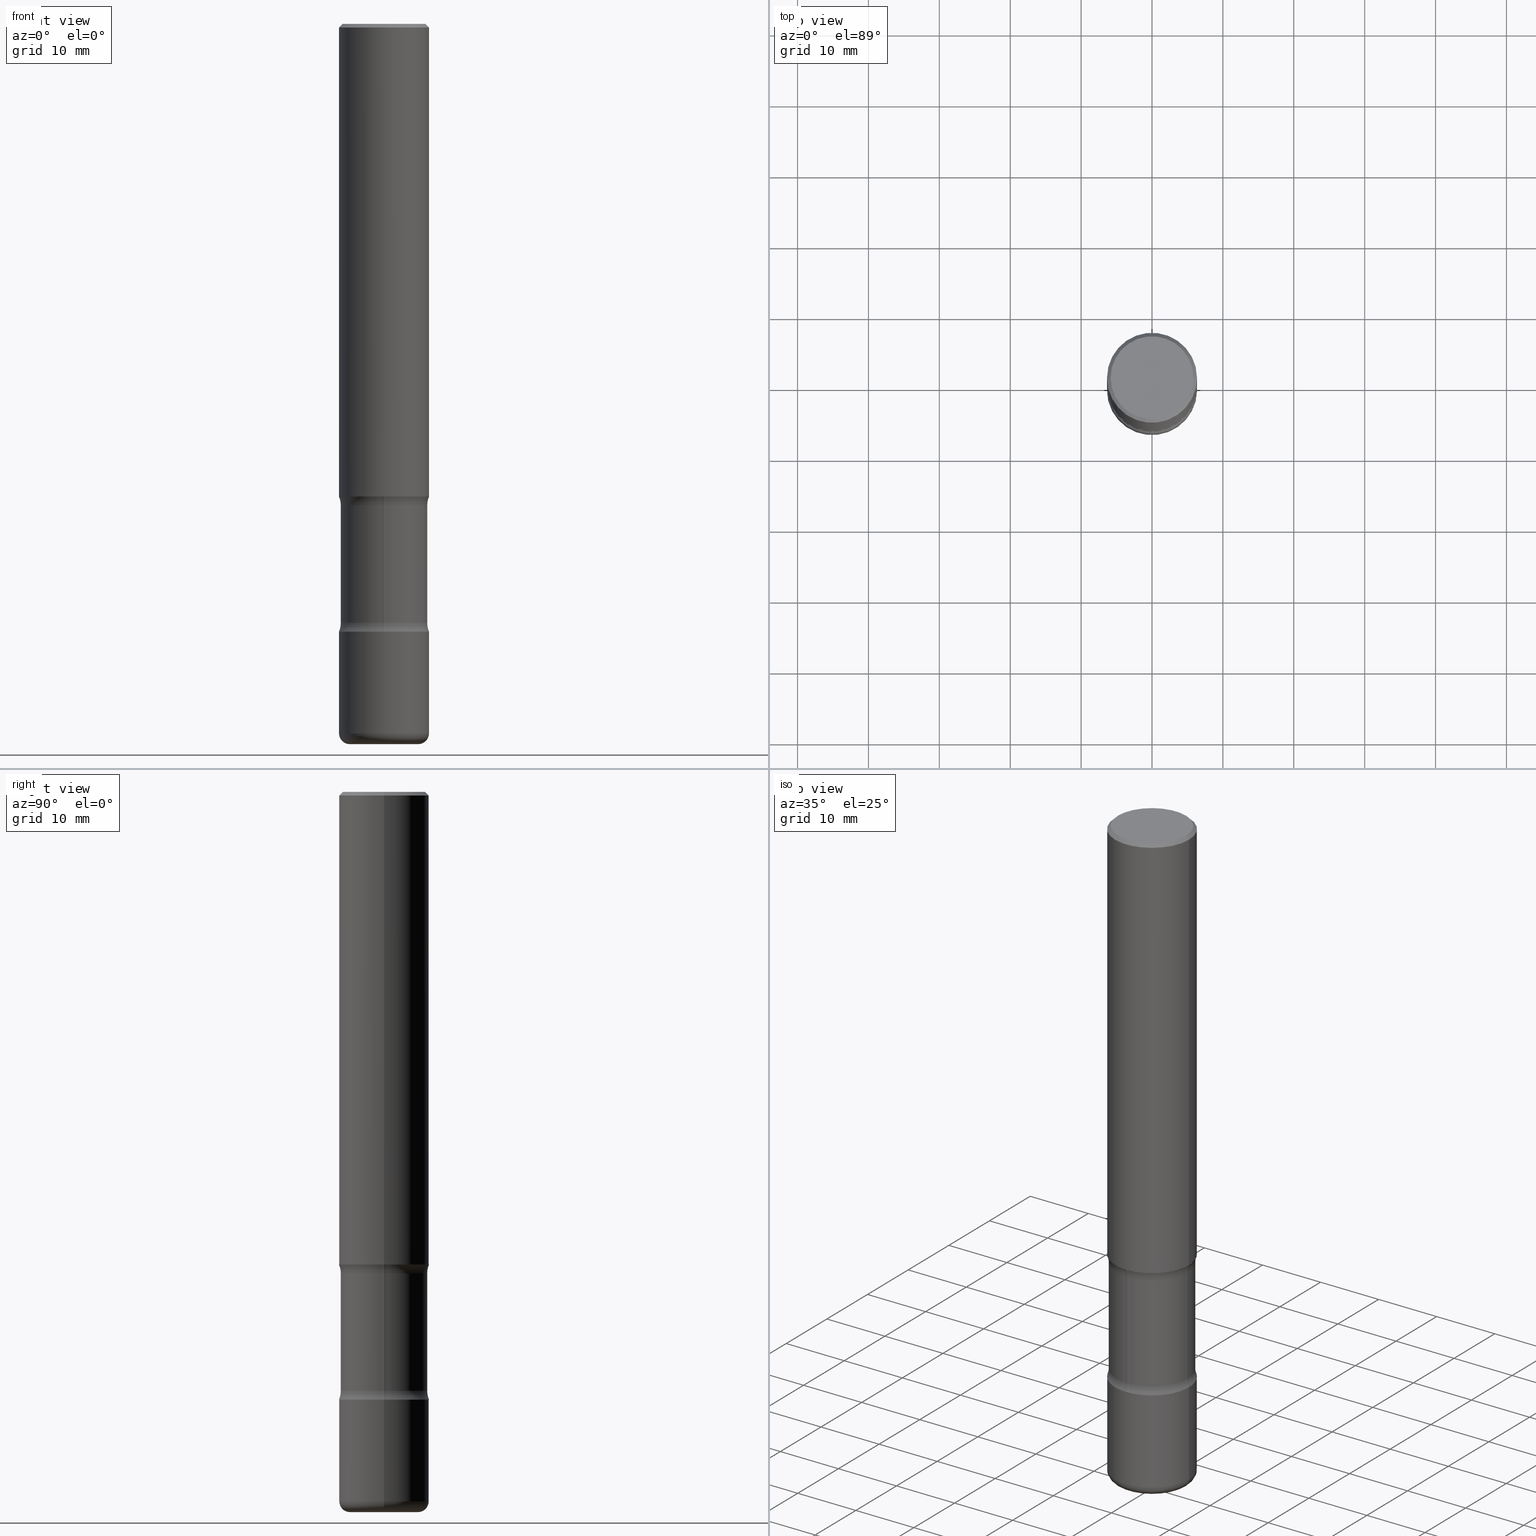
[diagram: canonical four-view strip — front | top / right | iso, engineering-drawing reading convention]
A machine part, canonical four-view strip (front | top / right | iso — engineering-drawing reading convention). The complete STEP part file that produces these views, byte-faithful:
ISO-10303-21;
HEADER;
FILE_DESCRIPTION (( 'STEP AP203' ),
    '1' );
FILE_NAME ('32832.STEP',
    '2023-03-11T07:05:04',
    ( '' ),
    ( '' ),
    'SwSTEP 2.0',
    'SolidWorks 2022',
    '' );
FILE_SCHEMA (( 'CONFIG_CONTROL_DESIGN' ));
ENDSEC;

DATA;
#1 = DIRECTION ( 'NONE',  ( 7.105427357601001859E-15, 1.000000000000000000, -3.491481338843145583E-15 ) ) ;
#2 = CARTESIAN_POINT ( 'NONE',  ( 9.781875224740545266E-29, -1.396592535537258075E-14, -3.999999999999999556 ) ) ;
#3 = ADVANCED_FACE ( 'NONE', ( #791 ), #230, .T. ) ;
#4 = EDGE_CURVE ( 'NONE', #780, #776, #705, .T. ) ;
#5 = VECTOR ( 'NONE', #343, 39.37007874015748143 ) ;
#6 = DIRECTION ( 'NONE',  ( 1.000000000000000000, -6.860497997771530774E-15, 4.840828329721222774E-29 ) ) ;
#7 = AXIS2_PLACEMENT_3D ( 'NONE', #625, #319, #640 ) ;
#8 = DIRECTION ( 'NONE',  ( 2.447148057124329649E-29, -3.489076555921193226E-15, -1.000000000000000000 ) ) ;
#9 = CARTESIAN_POINT ( 'NONE',  ( 0.2399999999999999079, -1.084104955710795999E-14, -2.625000000000000000 ) ) ;
#10 = CARTESIAN_POINT ( 'NONE',  ( 0.000000000000000000, 0.000000000000000000, 0.000000000000000000 ) ) ;
#11 = ORIENTED_EDGE ( 'NONE', *, *, #44, .F. ) ;
#12 = CARTESIAN_POINT ( 'NONE',  ( -1.646519519465068952E-15, -0.2400000000000138412, -3.994238073033860914 ) ) ;
#13 = LINE ( 'NONE', #635, #300 ) ;
#14 = ORIENTED_EDGE ( 'NONE', *, *, #455, .F. ) ;
#15 = CARTESIAN_POINT ( 'NONE',  ( 9.774491940116842475E-29, -1.393620241939029166E-14, -3.994238073033861802 ) ) ;
#16 = VECTOR ( 'NONE', #52, 39.37007874015748143 ) ;
#17 = VECTOR ( 'NONE', #495, 39.37007874015748143 ) ;
#18 = CARTESIAN_POINT ( 'NONE',  ( 1.675911042644767869E-15, 0.2399999999999904987, -2.673989794855665014 ) ) ;
#19 = VERTEX_POINT ( 'NONE', #356 ) ;
#20 = ORIENTED_EDGE ( 'NONE', *, *, #762, .T. ) ;
#21 = PRODUCT_RELATED_PRODUCT_CATEGORY ( 'detail', '', ( #481 ) ) ;
#22 = DIRECTION ( 'NONE',  ( 1.000000000000000000, -6.982962677686270655E-15, 0.000000000000000000 ) ) ;
#23 = ORIENTED_EDGE ( 'NONE', *, *, #429, .F. ) ;
#24 = ORIENTED_EDGE ( 'NONE', *, *, #65, .F. ) ;
#25 = ORIENTED_EDGE ( 'NONE', *, *, #120, .T. ) ;
#26 = ADVANCED_FACE ( 'NONE', ( #411 ), #312, .F. ) ;
#27 = DIRECTION ( 'NONE',  ( -2.445468806185136597E-29, 3.491481338843145583E-15, 1.000000000000000000 ) ) ;
#28 = AXIS2_PLACEMENT_3D ( 'NONE', #740, #426, #63 ) ;
#29 = AXIS2_PLACEMENT_3D ( 'NONE', #477, #722, #353 ) ;
#30 = ORIENTED_EDGE ( 'NONE', *, *, #366, .T. ) ;
#31 = LOCAL_TIME ( 2, 5, 4.000000000000000000, #176 ) ;
#32 = PLANE ( 'NONE',  #211 ) ;
#33 = DIRECTION ( 'NONE',  ( -2.445468806185136597E-29, 3.491481338843145583E-15, 1.000000000000000000 ) ) ;
#34 = CARTESIAN_POINT ( 'NONE',  ( 8.253457220874836014E-29, -1.178374951859561452E-14, -3.375000000000000000 ) ) ;
#35 = DIRECTION ( 'NONE',  ( 2.447148057124329649E-29, -3.489076555921193226E-15, -1.000000000000000000 ) ) ;
#36 = VERTEX_POINT ( 'NONE', #49 ) ;
#37 = EDGE_LOOP ( 'NONE', ( #717, #688 ) ) ;
#38 = EDGE_CURVE ( 'NONE', #106, #158, #494, .T. ) ;
#39 = APPROVAL_ROLE ( '' ) ;
#40 = DIRECTION ( 'NONE',  ( 1.000000000000000000, -6.982962677686262766E-15, 0.000000000000000000 ) ) ;
#41 = AXIS2_PLACEMENT_3D ( 'NONE', #647, #700, #22 ) ;
#42 = ORIENTED_EDGE ( 'NONE', *, *, #482, .T. ) ;
#43 = AXIS2_PLACEMENT_3D ( 'NONE', #709, #27, #468 ) ;
#44 = EDGE_CURVE ( 'NONE', #332, #95, #604, .T. ) ;
#45 = ADVANCED_FACE ( 'NONE', ( #241 ), #155, .F. ) ;
#46 = PERSON_AND_ORGANIZATION ( #207, #275 ) ;
#47 = AXIS2_PLACEMENT_3D ( 'NONE', #503, #389, #753 ) ;
#48 = CARTESIAN_POINT ( 'NONE',  ( 9.781875224740545266E-29, -1.396592535537258075E-14, -3.999999999999999556 ) ) ;
#49 = CARTESIAN_POINT ( 'NONE',  ( -0.2500000000000000000, -1.000739267919536563E-14, -3.375000000000000000 ) ) ;
#50 = PERSON_AND_ORGANIZATION ( #207, #275 ) ;
#51 = FACE_OUTER_BOUND ( 'NONE', #103, .T. ) ;
#52 = DIRECTION ( 'NONE',  ( -2.445468806185136877E-29, 3.491481338843145188E-15, 1.000000000000000000 ) ) ;
#53 = DATE_TIME_ROLE ( 'classification_date' ) ;
#54 = DIRECTION ( 'NONE',  ( 6.860497997771532351E-15, 1.000000000000000000, 0.000000000000000000 ) ) ;
#55 = EDGE_CURVE ( 'NONE', #19, #785, #286, .T. ) ;
#56 = DIRECTION ( 'NONE',  ( 1.000000000000000000, -6.982962677686269077E-15, 0.000000000000000000 ) ) ;
#57 = AXIS2_PLACEMENT_3D ( 'NONE', #507, #386, #320 ) ;
#58 = AXIS2_PLACEMENT_3D ( 'NONE', #276, #528, #464 ) ;
#59 = VECTOR ( 'NONE', #763, 39.37007874015748143 ) ;
#60 = CYLINDRICAL_SURFACE ( 'NONE', #301, 0.2399999999999999079 ) ;
#61 = CARTESIAN_POINT ( 'NONE',  ( 1.060460840681890784E-27, -1.514057029249396506E-13, -43.36431681319133702 ) ) ;
#62 = DIRECTION ( 'NONE',  ( 2.447148057124329649E-29, -3.489076555921193226E-15, -1.000000000000000000 ) ) ;
#63 = DIRECTION ( 'NONE',  ( 6.982962677686265922E-15, 1.000000000000000000, -4.370956789862821150E-15 ) ) ;
#64 = SHAPE_DEFINITION_REPRESENTATION ( #664, #543 ) ;
#65 = EDGE_CURVE ( 'NONE', #93, #412, #487, .T. ) ;
#66 = DIRECTION ( 'NONE',  ( -1.000000000000000000, 6.982962677686265922E-15, -4.876176775795935793E-29 ) ) ;
#67 = DIRECTION ( 'NONE',  ( -2.445468806185136597E-29, 3.491481338843145583E-15, 1.000000000000000000 ) ) ;
#68 = CC_DESIGN_PERSON_AND_ORGANIZATION_ASSIGNMENT ( #787, #792, ( #159 ) ) ;
#69 = CLOSED_SHELL ( 'NONE', ( #400, #233, #619, #474, #741, #179, #280, #102 ) ) ;
#70 = CIRCLE ( 'NONE', #526, 0.2399999999999998246 ) ;
#71 = PLANE ( 'NONE',  #425 ) ;
#72 = CIRCLE ( 'NONE', #302, 0.2500000000000000000 ) ;
#73 = DIRECTION ( 'NONE',  ( 1.000000000000000000, -6.982962677686262766E-15, 0.000000000000000000 ) ) ;
#74 = ORIENTED_EDGE ( 'NONE', *, *, #762, .F. ) ;
#75 = LINE ( 'NONE', #254, #760 ) ;
#76 = CARTESIAN_POINT ( 'NONE',  ( 8.133654205733900913E-29, -1.161270256406331354E-14, -3.326010205144336318 ) ) ;
#77 = ORIENTED_EDGE ( 'NONE', *, *, #557, .T. ) ;
#78 = LINE ( 'NONE', #200, #59 ) ;
#79 = MANIFOLD_SOLID_BREP ( 'Body-Move/Copy2[2]', #563 ) ;
#80 = EDGE_CURVE ( 'NONE', #225, #106, #616, .T. ) ;
#81 = CARTESIAN_POINT ( 'NONE',  ( 8.253457220874836014E-29, -1.178374951859561452E-14, -3.375000000000000000 ) ) ;
#82 = VERTEX_POINT ( 'NONE', #806 ) ;
#83 = FACE_OUTER_BOUND ( 'NONE', #728, .T. ) ;
#84 = CIRCLE ( 'NONE', #434, 0.2399999999999999634 ) ;
#85 = CARTESIAN_POINT ( 'NONE',  ( 6.419355616235983567E-29, -9.165138514463256612E-15, -2.625000000000000000 ) ) ;
#86 = ORIENTED_EDGE ( 'NONE', *, *, #482, .F. ) ;
#87 = MANIFOLD_SOLID_BREP ( 'Body-Move/Copy2[3]', #433 ) ;
#88 = FACE_OUTER_BOUND ( 'NONE', #686, .T. ) ;
#89 = ORIENTED_EDGE ( 'NONE', *, *, #305, .T. ) ;
#90 = ORIENTED_EDGE ( 'NONE', *, *, #98, .F. ) ;
#91 = ADVANCED_FACE ( 'NONE', ( #178 ), #111, .T. ) ;
#92 = CARTESIAN_POINT ( 'NONE',  ( 8.253457220874836014E-29, -1.178374951859561452E-14, -3.375000000000000000 ) ) ;
#93 = VERTEX_POINT ( 'NONE', #175 ) ;
#94 = LINE ( 'NONE', #282, #5 ) ;
#95 = VERTEX_POINT ( 'NONE', #560 ) ;
#96 = SECURITY_CLASSIFICATION ( '', '', #484 ) ;
#97 = DIRECTION ( 'NONE',  ( 1.000000000000000000, -6.982962677686266711E-15, 4.876176775795935793E-29 ) ) ;
#98 = EDGE_CURVE ( 'NONE', #718, #216, #576, .T. ) ;
#99 = DIRECTION ( 'NONE',  ( -1.000000000000000000, 6.982962677686266711E-15, 0.000000000000000000 ) ) ;
#100 = DIRECTION ( 'NONE',  ( -2.445468806185136877E-29, 3.491481338843145188E-15, 1.000000000000000000 ) ) ;
#101 = UNCERTAINTY_MEASURE_WITH_UNIT (LENGTH_MEASURE( 1.000000000000000082E-05 ), #663, 'distance_accuracy_value', 'NONE');
#102 = ADVANCED_FACE ( 'NONE', ( #545 ), #549, .T. ) ;
#103 = EDGE_LOOP ( 'NONE', ( #697, #397, #140, #145 ) ) ;
#104 = APPROVAL_DATE_TIME ( #480, #124 ) ;
#105 = AXIS2_PLACEMENT_3D ( 'NONE', #360, #622, #491 ) ;
#106 = VERTEX_POINT ( 'NONE', #554 ) ;
#107 = TOROIDAL_SURFACE ( 'NONE', #183, 0.1899999999999999745, 0.05999999999999994227 ) ;
#108 = DATE_AND_TIME ( #421, #463 ) ;
#109 = APPROVAL_PERSON_ORGANIZATION ( #295, #160, #364 ) ;
#110 = CARTESIAN_POINT ( 'NONE',  ( 0.000000000000000000, 0.000000000000000000, 0.000000000000000000 ) ) ;
#111 = PLANE ( 'NONE',  #105 ) ;
#112 = EDGE_CURVE ( 'NONE', #82, #216, #422, .T. ) ;
#113 = CARTESIAN_POINT ( 'NONE',  ( -0.3649999999999999356, -9.019221578538946345E-15, -3.326010205144336318 ) ) ;
#114 = DIRECTION ( 'NONE',  ( 7.105427357601001859E-15, 1.000000000000000000, -3.491481338843145583E-15 ) ) ;
#115 = DIRECTION ( 'NONE',  ( -2.445468806185136597E-29, 3.491481338843145583E-15, 1.000000000000000000 ) ) ;
#116 = CARTESIAN_POINT ( 'NONE',  ( -0.2499999999999997224, 1.675911042644701605E-15, -0.02000000000000005593 ) ) ;
#117 = AXIS2_PLACEMENT_3D ( 'NONE', #61, #234, #304 ) ;
#118 = VECTOR ( 'NONE', #236, 39.37007874015748143 ) ;
#119 = DIRECTION ( 'NONE',  ( -2.445468806185136597E-29, 3.491481338843145583E-15, 1.000000000000000000 ) ) ;
#120 = EDGE_CURVE ( 'NONE', #771, #412, #682, .T. ) ;
#121 = FACE_OUTER_BOUND ( 'NONE', #656, .T. ) ;
#122 = CARTESIAN_POINT ( 'NONE',  ( 6.419355616235983567E-29, -9.165138514463256612E-15, -2.625000000000000000 ) ) ;
#123 = DIRECTION ( 'NONE',  ( -2.445468806185136597E-29, 3.491481338843145583E-15, 1.000000000000000000 ) ) ;
#124 = APPROVAL ( #418, 'UNSPECIFIED' ) ;
#125 = DIRECTION ( 'NONE',  ( 1.000000000000000000, -6.982962677686262766E-15, 0.000000000000000000 ) ) ;
#126 = CARTESIAN_POINT ( 'NONE',  ( 8.253457220874836014E-29, -1.178374951859561452E-14, -3.375000000000000000 ) ) ;
#127 = VERTEX_POINT ( 'NONE', #626 ) ;
#128 = AXIS2_PLACEMENT_3D ( 'NONE', #81, #630, #752 ) ;
#129 = AXIS2_PLACEMENT_3D ( 'NONE', #48, #430, #167 ) ;
#130 = DIRECTION ( 'NONE',  ( 6.982962677686265922E-15, 1.000000000000000000, -3.489076555921192832E-15 ) ) ;
#131 = CIRCLE ( 'NONE', #527, 0.2500000000000000000 ) ;
#132 = CARTESIAN_POINT ( 'NONE',  ( 6.537981459331545506E-29, -9.337871246365005652E-15, -2.673989794855663682 ) ) ;
#133 = ORIENTED_EDGE ( 'NONE', *, *, #623, .F. ) ;
#134 = EDGE_CURVE ( 'NONE', #457, #593, #182, .T. ) ;
#135 = CARTESIAN_POINT ( 'NONE',  ( 9.781875224740546387E-29, -1.396592535537258233E-14, -4.000000000000000000 ) ) ;
#136 = CARTESIAN_POINT ( 'NONE',  ( 0.000000000000000000, 0.000000000000000000, 0.000000000000000000 ) ) ;
#137 = ORIENTED_EDGE ( 'NONE', *, *, #714, .F. ) ;
#138 = FACE_OUTER_BOUND ( 'NONE', #146, .T. ) ;
#139 = CARTESIAN_POINT ( 'NONE',  ( 0.2500000000000000000, -1.091087918388482487E-14, -2.625000000000000000 ) ) ;
#140 = ORIENTED_EDGE ( 'NONE', *, *, #340, .T. ) ;
#141 = AXIS2_PLACEMENT_3D ( 'NONE', #770, #414, #97 ) ;
#142 = CC_DESIGN_APPROVAL ( #504, ( #159 ) ) ;
#143 = FACE_OUTER_BOUND ( 'NONE', #272, .T. ) ;
#144 = EDGE_CURVE ( 'NONE', #512, #95, #575, .T. ) ;
#145 = ORIENTED_EDGE ( 'NONE', *, *, #703, .F. ) ;
#146 = EDGE_LOOP ( 'NONE', ( #602, #148, #151, #269 ) ) ;
#147 = DIRECTION ( 'NONE',  ( -2.445468806185136597E-29, 3.491481338843145583E-15, 1.000000000000000000 ) ) ;
#148 = ORIENTED_EDGE ( 'NONE', *, *, #134, .T. ) ;
#149 = EDGE_LOOP ( 'NONE', ( #265, #568, #470, #655 ) ) ;
#150 = DIRECTION ( 'NONE',  ( -2.445468806185136597E-29, 3.491481338843145583E-15, 1.000000000000000000 ) ) ;
#151 = ORIENTED_EDGE ( 'NONE', *, *, #714, .T. ) ;
#152 = ORIENTED_EDGE ( 'NONE', *, *, #513, .T. ) ;
#153 = CALENDAR_DATE ( 2023, 11, 3 ) ;
#154 = DIRECTION ( 'NONE',  ( 2.447148057124329649E-29, -3.489076555921193226E-15, -1.000000000000000000 ) ) ;
#155 = TOROIDAL_SURFACE ( 'NONE', #224, 0.3649999999999999356, 0.1249999999999999584 ) ;
#156 = CIRCLE ( 'NONE', #369, 0.2500000000000000000 ) ;
#157 = ORIENTED_EDGE ( 'NONE', *, *, #727, .T. ) ;
#158 = VERTEX_POINT ( 'NONE', #116 ) ;
#159 = PRODUCT_DEFINITION_FORMATION_WITH_SPECIFIED_SOURCE ( 'ANY', '', #481, .NOT_KNOWN. ) ;
#160 = APPROVAL ( #672, 'UNSPECIFIED' ) ;
#161 = CARTESIAN_POINT ( 'NONE',  ( -0.2500000000000000000, 1.776356839400250465E-15, -1.229733772563726445E-29 ) ) ;
#162 = ORIENTED_EDGE ( 'NONE', *, *, #632, .F. ) ;
#163 = VERTEX_POINT ( 'NONE', #620 ) ;
#164 = DIRECTION ( 'NONE',  ( 0.000000000000000000, 0.000000000000000000, 1.000000000000000000 ) ) ;
#165 = DIRECTION ( 'NONE',  ( 2.447148057124329649E-29, -3.489076555921193226E-15, -1.000000000000000000 ) ) ;
#166 = PERSON_AND_ORGANIZATION_ROLE ( 'classification_officer' ) ;
#167 = DIRECTION ( 'NONE',  ( 1.000000000000000000, -6.982962677686267499E-15, 0.000000000000000000 ) ) ;
#168 = AXIS2_PLACEMENT_3D ( 'NONE', #428, #674, #374 ) ;
#169 = DIRECTION ( 'NONE',  ( 1.000000000000000000, -6.982962677686270655E-15, 0.000000000000000000 ) ) ;
#170 = ADVANCED_FACE ( 'NONE', ( #121 ), #719, .F. ) ;
#171 = AXIS2_PLACEMENT_3D ( 'NONE', #85, #459, #311 ) ;
#172 = COORDINATED_UNIVERSAL_TIME_OFFSET ( 5, 0, .BEHIND. ) ;
#173 = VECTOR ( 'NONE', #372, 39.37007874015748143 ) ;
#174 = FACE_OUTER_BOUND ( 'NONE', #536, .T. ) ;
#175 = CARTESIAN_POINT ( 'NONE',  ( -0.1649999999999997025, -1.281373651355435053E-14, -3.999999999999999556 ) ) ;
#176 = COORDINATED_UNIVERSAL_TIME_OFFSET ( 5, 0, .BEHIND. ) ;
#177 = CARTESIAN_POINT ( 'NONE',  ( 8.253457220874836014E-29, -1.178374951859561452E-14, -3.375000000000000000 ) ) ;
#178 = FACE_OUTER_BOUND ( 'NONE', #583, .T. ) ;
#179 = ADVANCED_FACE ( 'NONE', ( #486 ), #371, .F. ) ;
#180 = LINE ( 'NONE', #611, #118 ) ;
#181 = CARTESIAN_POINT ( 'NONE',  ( -0.2499999999999998612, 1.776356839400249479E-15, -1.229733772563725745E-29 ) ) ;
#182 = CIRCLE ( 'NONE', #745, 0.2399999999999999634 ) ;
#183 = AXIS2_PLACEMENT_3D ( 'NONE', #522, #147, #349 ) ;
#184 = DIRECTION ( 'NONE',  ( -1.000000000000000000, 6.982962677686266711E-15, 0.000000000000000000 ) ) ;
#185 = EDGE_CURVE ( 'NONE', #163, #332, #538, .T. ) ;
#186 = CARTESIAN_POINT ( 'NONE',  ( 9.781875224740546387E-29, -1.396592535537258233E-14, -4.000000000000000000 ) ) ;
#187 = CYLINDRICAL_SURFACE ( 'NONE', #788, 0.2399999999999999079 ) ;
#188 = FACE_OUTER_BOUND ( 'NONE', #534, .T. ) ;
#189 = ORIENTED_EDGE ( 'NONE', *, *, #270, .F. ) ;
#190 = LINE ( 'NONE', #9, #646 ) ;
#191 = DIRECTION ( 'NONE',  ( 1.000000000000000000, -6.982962677686263555E-15, 0.000000000000000000 ) ) ;
#192 = ORIENTED_EDGE ( 'NONE', *, *, #789, .T. ) ;
#193 = EDGE_CURVE ( 'NONE', #106, #225, #406, .T. ) ;
#194 = AXIS2_PLACEMENT_3D ( 'NONE', #76, #8, #201 ) ;
#195 = AXIS2_PLACEMENT_3D ( 'NONE', #427, #607, #555 ) ;
#196 = CARTESIAN_POINT ( 'NONE',  ( 1.606081415867839095E-15, 0.2299999999999997047, -8.009064516888722925E-16 ) ) ;
#197 = CIRCLE ( 'NONE', #355, 0.1250000000000000000 ) ;
#198 = DIRECTION ( 'NONE',  ( 1.000000000000000000, -6.982962677686269077E-15, 0.000000000000000000 ) ) ;
#199 = VERTEX_POINT ( 'NONE', #317 ) ;
#200 = CARTESIAN_POINT ( 'NONE',  ( -0.2499999999999997224, 1.675911042644701605E-15, -0.02000000000000005593 ) ) ;
#201 = DIRECTION ( 'NONE',  ( 6.982962677686265922E-15, 1.000000000000000000, -3.489076555921193226E-15 ) ) ;
#202 = ORIENTED_EDGE ( 'NONE', *, *, #419, .T. ) ;
#203 = EDGE_CURVE ( 'NONE', #593, #127, #248, .T. ) ;
#204 = CYLINDRICAL_SURFACE ( 'NONE', #476, 0.2499999999999998612 ) ;
#205 = VERTEX_POINT ( 'NONE', #447 ) ;
#206 = ORIENTED_EDGE ( 'NONE', *, *, #596, .T. ) ;
#207 = PERSON ( 'UNSPECIFIED', 'UNSPECIFIED', 'UNSPECIFIED', ('UNSPECIFIED'), ('UNSPECIFIED'), ('UNSPECIFIED') ) ;
#208 = AXIS2_PLACEMENT_3D ( 'NONE', #743, #114, #749 ) ;
#209 = CIRCLE ( 'NONE', #680, 0.2399999999999998246 ) ;
#210 = CC_DESIGN_PERSON_AND_ORGANIZATION_ASSIGNMENT ( #781, #285, ( #159 ) ) ;
#211 = AXIS2_PLACEMENT_3D ( 'NONE', #135, #438, #330 ) ;
#212 = CARTESIAN_POINT ( 'NONE',  ( 9.635147096369438236E-29, -1.375643647504199401E-14, -3.939999999999999947 ) ) ;
#213 = EDGE_LOOP ( 'NONE', ( #416, #666 ) ) ;
#214 = ORIENTED_EDGE ( 'NONE', *, *, #144, .T. ) ;
#215 = CARTESIAN_POINT ( 'NONE',  ( 0.1649999999999997025, -1.509790752500488195E-14, -3.999999999999999556 ) ) ;
#216 = VERTEX_POINT ( 'NONE', #505 ) ;
#217 = ORIENTED_EDGE ( 'NONE', *, *, #624, .T. ) ;
#218 = DATE_AND_TIME ( #603, #451 ) ;
#219 = CARTESIAN_POINT ( 'NONE',  ( 2.548781377355568365E-15, 0.3649999999999883338, -3.326010205144337206 ) ) ;
#220 = ORIENTED_EDGE ( 'NONE', *, *, #270, .T. ) ;
#221 = EDGE_CURVE ( 'NONE', #127, #36, #628, .T. ) ;
#222 = CLOSED_SHELL ( 'NONE', ( #26, #255, #375, #804, #439, #351, #242, #170 ) ) ;
#223 = FACE_OUTER_BOUND ( 'NONE', #598, .T. ) ;
#224 = AXIS2_PLACEMENT_3D ( 'NONE', #676, #123, #671 ) ;
#225 = VERTEX_POINT ( 'NONE', #139 ) ;
#226 = ORIENTED_EDGE ( 'NONE', *, *, #444, .T. ) ;
#227 = AXIS2_PLACEMENT_3D ( 'NONE', #251, #384, #452 ) ;
#228 =( LENGTH_UNIT ( ) NAMED_UNIT ( * ) SI_UNIT ( $, .METRE. ) );
#229 = DIRECTION ( 'NONE',  ( 6.982962677686265922E-15, 1.000000000000000000, -4.553079989440442247E-15 ) ) ;
#230 = PLANE ( 'NONE',  #525 ) ;
#231 = CALENDAR_DATE ( 2023, 11, 3 ) ;
#232 = FACE_OUTER_BOUND ( 'NONE', #577, .T. ) ;
#233 = ADVANCED_FACE ( 'NONE', ( #571 ), #273, .F. ) ;
#234 = DIRECTION ( 'NONE',  ( 2.445468806185136597E-29, -3.491481338843145583E-15, -1.000000000000000000 ) ) ;
#235 = PERSON_AND_ORGANIZATION ( #207, #275 ) ;
#236 = DIRECTION ( 'NONE',  ( -2.445468806185136877E-29, 3.491481338843145188E-15, 1.000000000000000000 ) ) ;
#237 = AXIS2_PLACEMENT_3D ( 'NONE', #501, #803, #431 ) ;
#238 = DIRECTION ( 'NONE',  ( 6.982962677686265922E-15, 1.000000000000000000, -4.553079989440440670E-15 ) ) ;
#239 = CIRCLE ( 'NONE', #736, 0.1249999999999999584 ) ;
#240 = DIRECTION ( 'NONE',  ( -6.982962677686266711E-15, -1.000000000000000000, 3.491481338843145583E-15 ) ) ;
#241 = FACE_OUTER_BOUND ( 'NONE', #694, .T. ) ;
#242 = ADVANCED_FACE ( 'NONE', ( #188 ), #252, .F. ) ;
#243 = CARTESIAN_POINT ( 'NONE',  ( 8.253457220874836014E-29, -1.178374951859561452E-14, -3.375000000000000000 ) ) ;
#244 = DIRECTION ( 'NONE',  ( -2.447148057124329649E-29, 3.489076555921192832E-15, 1.000000000000000000 ) ) ;
#245 = PRODUCT_DEFINITION ( 'UNKNOWN', '', #159, #387 ) ;
#246 = DIRECTION ( 'NONE',  ( -2.445468806185136597E-29, 3.491481338843145583E-15, 1.000000000000000000 ) ) ;
#247 = DIRECTION ( 'NONE',  ( -2.445468806185136597E-29, 3.491481338843145583E-15, 1.000000000000000000 ) ) ;
#248 = CIRCLE ( 'NONE', #367, 0.1249999999999999584 ) ;
#249 = CIRCLE ( 'NONE', #500, 0.2499999999999997224 ) ;
#250 = CIRCLE ( 'NONE', #227, 0.1250000000000000000 ) ;
#251 = CARTESIAN_POINT ( 'NONE',  ( 2.548781377355551799E-15, 0.3649999999999904987, -2.673989794855665014 ) ) ;
#252 = PLANE ( 'NONE',  #128 ) ;
#253 = APPROVAL_DATE_TIME ( #441, #160 ) ;
#254 = CARTESIAN_POINT ( 'NONE',  ( 0.2499999999999997224, -1.784954126219744217E-15, -0.02000000000000005593 ) ) ;
#255 = ADVANCED_FACE ( 'NONE', ( #764 ), #268, .T. ) ;
#256 = DIRECTION ( 'NONE',  ( 2.447148057124329649E-29, -3.489076555921193226E-15, -1.000000000000000000 ) ) ;
#257 = EDGE_LOOP ( 'NONE', ( #321, #74 ) ) ;
#258 = CARTESIAN_POINT ( 'NONE',  ( -1.680822009453943183E-15, -0.2400000000000115652, -3.326010205144334986 ) ) ;
#259 = DIRECTION ( 'NONE',  ( 1.000000000000000000, -6.982962677686265133E-15, 0.000000000000000000 ) ) ;
#260 = ORIENTED_EDGE ( 'NONE', *, *, #775, .T. ) ;
#261 = VECTOR ( 'NONE', #100, 39.37007874015748143 ) ;
#262 = CARTESIAN_POINT ( 'NONE',  ( 1.675911042644784829E-15, 0.2399999999999883615, -3.326010205144337206 ) ) ;
#263 = CIRCLE ( 'NONE', #748, 0.1249999999999999584 ) ;
#264 = CARTESIAN_POINT ( 'NONE',  ( 4.890937612370287172E-31, -6.982962677686310098E-17, -0.02000000000000005593 ) ) ;
#265 = ORIENTED_EDGE ( 'NONE', *, *, #775, .F. ) ;
#266 = ORIENTED_EDGE ( 'NONE', *, *, #465, .T. ) ;
#267 = EDGE_CURVE ( 'NONE', #205, #339, #588, .T. ) ;
#268 = CYLINDRICAL_SURFACE ( 'NONE', #734, 0.2500000000000000000 ) ;
#269 = ORIENTED_EDGE ( 'NONE', *, *, #292, .F. ) ;
#270 = EDGE_CURVE ( 'NONE', #771, #93, #13, .T. ) ;
#271 = FACE_OUTER_BOUND ( 'NONE', #519, .T. ) ;
#272 = EDGE_LOOP ( 'NONE', ( #631, #89, #157, #294 ) ) ;
#273 = TOROIDAL_SURFACE ( 'NONE', #194, 0.3649999999999999356, 0.1249999999999999584 ) ;
#274 = AXIS2_PLACEMENT_3D ( 'NONE', #92, #33, #40 ) ;
#275 = ORGANIZATION ( 'UNSPECIFIED', 'UNSPECIFIED', '' ) ;
#276 = CARTESIAN_POINT ( 'NONE',  ( 6.539158631376917547E-29, -9.336185468995560747E-15, -2.673989794855663682 ) ) ;
#277 = EDGE_LOOP ( 'NONE', ( #290, #648 ) ) ;
#278 = DIRECTION ( 'NONE',  ( -6.982962677686266711E-15, -1.000000000000000000, 3.491481338843145583E-15 ) ) ;
#279 = CYLINDRICAL_SURFACE ( 'NONE', #141, 0.2500000000000000000 ) ;
#280 = ADVANCED_FACE ( 'NONE', ( #768 ), #757, .F. ) ;
#281 = DIRECTION ( 'NONE',  ( 2.438088387897960049E-29, -3.491481338843145188E-15, -1.000000000000000000 ) ) ;
#282 = CARTESIAN_POINT ( 'NONE',  ( 1.675911042644801001E-15, 0.2399999999999859746, -3.994238073033863134 ) ) ;
#283 = ORIENTED_EDGE ( 'NONE', *, *, #465, .F. ) ;
#284 = ORIENTED_EDGE ( 'NONE', *, *, #727, .F. ) ;
#285 = PERSON_AND_ORGANIZATION_ROLE ( 'creator' ) ;
#286 = CIRCLE ( 'NONE', #28, 0.2500000000000000000 ) ;
#287 = FACE_OUTER_BOUND ( 'NONE', #347, .T. ) ;
#288 = CIRCLE ( 'NONE', #43, 0.1899999999999999745 ) ;
#289 = CIRCLE ( 'NONE', #502, 0.1249999999999999584 ) ;
#290 = ORIENTED_EDGE ( 'NONE', *, *, #221, .F. ) ;
#291 = PERSON_AND_ORGANIZATION_ROLE ( 'design_owner' ) ;
#292 = EDGE_CURVE ( 'NONE', #216, #82, #209, .T. ) ;
#293 = DIRECTION ( 'NONE',  ( -2.445468806185136597E-29, 3.491481338843145583E-15, 1.000000000000000000 ) ) ;
#294 = ORIENTED_EDGE ( 'NONE', *, *, #557, .F. ) ;
#295 = PERSON_AND_ORGANIZATION ( #207, #275 ) ;
#296 = CC_DESIGN_DATE_AND_TIME_ASSIGNMENT ( #108, #53, ( #96 ) ) ;
#297 = CARTESIAN_POINT ( 'NONE',  ( -1.043851414335219820E-46, 1.490343170380447200E-32, 4.268512490100411279E-18 ) ) ;
#298 = CARTESIAN_POINT ( 'NONE',  ( 6.419355616235983567E-29, -9.165138514463256612E-15, -2.625000000000000000 ) ) ;
#299 = DIRECTION ( 'NONE',  ( 2.445468806185136597E-29, -3.491481338843145583E-15, -1.000000000000000000 ) ) ;
#300 = VECTOR ( 'NONE', #518, 39.37007874015748854 ) ;
#301 = AXIS2_PLACEMENT_3D ( 'NONE', #544, #119, #730 ) ;
#302 = AXIS2_PLACEMENT_3D ( 'NONE', #551, #246, #747 ) ;
#303 = DIRECTION ( 'NONE',  ( 1.000000000000000000, -6.982962677686266711E-15, 4.876176775795935793E-29 ) ) ;
#304 = DIRECTION ( 'NONE',  ( -1.000000000000000000, 6.982962677686266711E-15, 0.000000000000000000 ) ) ;
#305 = EDGE_CURVE ( 'NONE', #95, #512, #746, .T. ) ;
#306 = DIRECTION ( 'NONE',  ( 1.000000000000000000, -6.860497997771530774E-15, 4.840828329721222774E-29 ) ) ;
#307 = DIRECTION ( 'NONE',  ( 1.000000000000000000, -6.982962677686267499E-15, 0.000000000000000000 ) ) ;
#308 = APPLICATION_CONTEXT ( 'configuration controlled 3d designs of mechanical parts and assemblies' ) ;
#309 = FACE_OUTER_BOUND ( 'NONE', #213, .T. ) ;
#310 = ORIENTED_EDGE ( 'NONE', *, *, #699, .F. ) ;
#311 = DIRECTION ( 'NONE',  ( 1.000000000000000000, -6.982962677686270655E-15, 0.000000000000000000 ) ) ;
#312 = CONICAL_SURFACE ( 'NONE', #499, 1127.411546571649069, 1.535889741755015248 ) ;
#313 = CIRCLE ( 'NONE', #379, 0.1249999999999999584 ) ;
#314 =( GEOMETRIC_REPRESENTATION_CONTEXT ( 3 ) GLOBAL_UNCERTAINTY_ASSIGNED_CONTEXT ( ( #101 ) ) GLOBAL_UNIT_ASSIGNED_CONTEXT ( ( #663, #550, #405 ) ) REPRESENTATION_CONTEXT ( 'NONE', 'WORKASPACE' ) );
#315 = EDGE_CURVE ( 'NONE', #593, #457, #84, .T. ) ;
#316 = DIRECTION ( 'NONE',  ( -2.445468806185136877E-29, 3.491481338843145188E-15, 1.000000000000000000 ) ) ;
#317 = CARTESIAN_POINT ( 'NONE',  ( -0.2299999999999997047, 1.640996229256270547E-15, 4.268512490089056766E-18 ) ) ;
#318 = ORIENTED_EDGE ( 'NONE', *, *, #267, .F. ) ;
#319 = DIRECTION ( 'NONE',  ( -2.438088387897960049E-29, 3.491481338843145188E-15, 1.000000000000000000 ) ) ;
#320 = DIRECTION ( 'NONE',  ( 6.982962677686265922E-15, 1.000000000000000000, -3.489076555921193226E-15 ) ) ;
#321 = ORIENTED_EDGE ( 'NONE', *, *, #650, .F. ) ;
#322 = CARTESIAN_POINT ( 'NONE',  ( 6.418096178031587796E-29, -9.166942101654721175E-15, -2.625000000000000000 ) ) ;
#323 = ORIENTED_EDGE ( 'NONE', *, *, #80, .T. ) ;
#324 = DIRECTION ( 'NONE',  ( 1.000000000000000000, -6.982962677686266711E-15, 4.876176775795935793E-29 ) ) ;
#325 = EDGE_CURVE ( 'NONE', #718, #466, #539, .T. ) ;
#326 = ORIENTED_EDGE ( 'NONE', *, *, #203, .T. ) ;
#327 = VECTOR ( 'NONE', #615, 39.37007874015748854 ) ;
#328 = TOROIDAL_SURFACE ( 'NONE', #735, 0.3649999999999998801, 0.1250000000000000000 ) ;
#329 = CIRCLE ( 'NONE', #590, 0.2299999999999997047 ) ;
#330 = DIRECTION ( 'NONE',  ( 1.000000000000000000, -6.982962677686265922E-15, 4.876176775795935793E-29 ) ) ;
#331 = DIRECTION ( 'NONE',  ( -2.445468806185136597E-29, 3.491481338843145583E-15, 1.000000000000000000 ) ) ;
#332 = VERTEX_POINT ( 'NONE', #453 ) ;
#333 = ORIENTED_EDGE ( 'NONE', *, *, #193, .T. ) ;
#334 = ADVANCED_FACE ( 'NONE', ( #696 ), #204, .T. ) ;
#335 = DIRECTION ( 'NONE',  ( 1.000000000000000000, -6.982962677686266711E-15, 0.000000000000000000 ) ) ;
#336 = VERTEX_POINT ( 'NONE', #574 ) ;
#337 = EDGE_LOOP ( 'NONE', ( #214, #202, #378, #284 ) ) ;
#338 = CYLINDRICAL_SURFACE ( 'NONE', #450, 0.2399999999999999079 ) ;
#339 = VERTEX_POINT ( 'NONE', #18 ) ;
#340 = EDGE_CURVE ( 'NONE', #336, #158, #249, .T. ) ;
#341 = CIRCLE ( 'NONE', #800, 0.05999999999999994227 ) ;
#342 = CIRCLE ( 'NONE', #395, 0.2500000000000000000 ) ;
#343 = DIRECTION ( 'NONE',  ( 2.447148057124329649E-29, -3.489076555921192832E-15, -1.000000000000000000 ) ) ;
#344 = VERTEX_POINT ( 'NONE', #704 ) ;
#345 = FACE_OUTER_BOUND ( 'NONE', #710, .T. ) ;
#346 = MANIFOLD_SOLID_BREP ( 'Body-Move/Copy2[4]', #69 ) ;
#347 = EDGE_LOOP ( 'NONE', ( #755, #599, #559, #350 ) ) ;
#348 = ORIENTED_EDGE ( 'NONE', *, *, #444, .F. ) ;
#349 = DIRECTION ( 'NONE',  ( 1.000000000000000000, -6.982962677686265133E-15, 4.883557194083112340E-29 ) ) ;
#350 = ORIENTED_EDGE ( 'NONE', *, *, #537, .F. ) ;
#351 = ADVANCED_FACE ( 'NONE', ( #143 ), #279, .T. ) ;
#352 = LENGTH_MEASURE_WITH_UNIT ( LENGTH_MEASURE( 0.02539999999999999897 ), #228 );
#353 = DIRECTION ( 'NONE',  ( 1.000000000000000000, -6.982962677686268288E-15, 4.883557194083112901E-29 ) ) ;
#354 = CIRCLE ( 'NONE', #564, 0.2399999999999999634 ) ;
#355 = AXIS2_PLACEMENT_3D ( 'NONE', #442, #6, #566 ) ;
#356 = CARTESIAN_POINT ( 'NONE',  ( -1.715124499442800060E-15, -0.2500000000000118239, -3.374999999999998668 ) ) ;
#357 = ADVANCED_FACE ( 'NONE', ( #88 ), #629, .F. ) ;
#358 = CARTESIAN_POINT ( 'NONE',  ( 0.000000000000000000, 0.000000000000000000, 0.000000000000000000 ) ) ;
#359 = DIRECTION ( 'NONE',  ( -1.000000000000000000, 6.982962677686266711E-15, 0.000000000000000000 ) ) ;
#360 = CARTESIAN_POINT ( 'NONE',  ( 6.419355616235983567E-29, -9.165138514463256612E-15, -2.625000000000000000 ) ) ;
#361 = APPROVAL_DATE_TIME ( #733, #504 ) ;
#362 = CARTESIAN_POINT ( 'NONE',  ( -0.2399999999999999079, -7.459835948639017807E-15, -2.625000000000000000 ) ) ;
#363 = CARTESIAN_POINT ( 'NONE',  ( 9.605275504341070416E-18, -1.394580769489453534E-14, -3.994238073033861802 ) ) ;
#364 = APPROVAL_ROLE ( '' ) ;
#365 = DIRECTION ( 'NONE',  ( -2.445468806185136597E-29, 3.491481338843145583E-15, 1.000000000000000000 ) ) ;
#366 = EDGE_CURVE ( 'NONE', #587, #713, #669, .T. ) ;
#367 = AXIS2_PLACEMENT_3D ( 'NONE', #382, #567, #259 ) ;
#368 = DIRECTION ( 'NONE',  ( -1.000000000000000000, 7.105427357600997914E-15, 0.000000000000000000 ) ) ;
#369 = AXIS2_PLACEMENT_3D ( 'NONE', #614, #62, #670 ) ;
#370 = CARTESIAN_POINT ( 'NONE',  ( 0.1899999999999999745, -1.508319938380238721E-14, -3.939999999999999947 ) ) ;
#371 = PLANE ( 'NONE',  #783 ) ;
#372 = DIRECTION ( 'NONE',  ( 2.447148057124329649E-29, -3.489076555921192832E-15, -1.000000000000000000 ) ) ;
#373 = EDGE_LOOP ( 'NONE', ( #723, #766 ) ) ;
#374 = DIRECTION ( 'NONE',  ( 1.000000000000000000, -6.982962677686265133E-15, 0.000000000000000000 ) ) ;
#375 = ADVANCED_FACE ( 'NONE', ( #287 ), #644, .T. ) ;
#376 = CARTESIAN_POINT ( 'NONE',  ( -0.2500000000000000000, -1.099373615741855222E-14, -3.375000000000000000 ) ) ;
#377 = CARTESIAN_POINT ( 'NONE',  ( 6.539158631376917547E-29, -9.336185468995560747E-15, -2.673989794855663682 ) ) ;
#378 = ORIENTED_EDGE ( 'NONE', *, *, #366, .F. ) ;
#379 = AXIS2_PLACEMENT_3D ( 'NONE', #219, #658, #726 ) ;
#380 = LOCAL_TIME ( 2, 5, 4.000000000000000000, #546 ) ;
#381 = DIRECTION ( 'NONE',  ( -2.445468806185136877E-29, 3.491481338843145188E-15, 1.000000000000000000 ) ) ;
#382 = CARTESIAN_POINT ( 'NONE',  ( 0.3649999999999999356, -1.416148394141880026E-14, -3.326010205144336318 ) ) ;
#383 = EDGE_LOOP ( 'NONE', ( #189, #25, #24 ) ) ;
#384 = DIRECTION ( 'NONE',  ( -1.000000000000000000, 6.982962677686265922E-15, -4.883557194083112340E-29 ) ) ;
#385 = EDGE_CURVE ( 'NONE', #199, #724, #679, .T. ) ;
#386 = DIRECTION ( 'NONE',  ( 2.447148057124329649E-29, -3.489076555921193226E-15, -1.000000000000000000 ) ) ;
#387 = DESIGN_CONTEXT ( 'detailed design', #520, 'design' ) ;
#388 = ORIENTED_EDGE ( 'NONE', *, *, #38, .F. ) ;
#389 = DIRECTION ( 'NONE',  ( 2.447148057124329649E-29, -3.489076555921193226E-15, -1.000000000000000000 ) ) ;
#390 = CC_DESIGN_PERSON_AND_ORGANIZATION_ASSIGNMENT ( #50, #291, ( #481 ) ) ;
#391 = CARTESIAN_POINT ( 'NONE',  ( 9.635147096369438236E-29, -1.375643647504199401E-14, -3.939999999999999947 ) ) ;
#392 = EDGE_LOOP ( 'NONE', ( #524, #582, #449, #86 ) ) ;
#393 = AXIS2_PLACEMENT_3D ( 'NONE', #738, #795, #368 ) ;
#394 = AXIS2_PLACEMENT_3D ( 'NONE', #212, #586, #651 ) ;
#395 = AXIS2_PLACEMENT_3D ( 'NONE', #322, #637, #685 ) ;
#396 = DIRECTION ( 'NONE',  ( -2.445468806185136597E-29, 3.491481338843145583E-15, 1.000000000000000000 ) ) ;
#397 = ORIENTED_EDGE ( 'NONE', *, *, #751, .T. ) ;
#398 = CARTESIAN_POINT ( 'NONE',  ( 8.133571939574879425E-29, -1.161282037388533162E-14, -3.326010205144336318 ) ) ;
#399 = ORIENTED_EDGE ( 'NONE', *, *, #305, .F. ) ;
#400 = ADVANCED_FACE ( 'NONE', ( #531 ), #338, .T. ) ;
#401 = FACE_OUTER_BOUND ( 'NONE', #636, .T. ) ;
#402 = ORIENTED_EDGE ( 'NONE', *, *, #315, .T. ) ;
#403 = EDGE_LOOP ( 'NONE', ( #765, #152 ) ) ;
#404 = ORIENTED_EDGE ( 'NONE', *, *, #632, .T. ) ;
#405 =( NAMED_UNIT ( * ) SI_UNIT ( $, .STERADIAN. ) SOLID_ANGLE_UNIT ( ) );
#406 = CIRCLE ( 'NONE', #41, 0.2500000000000000000 ) ;
#407 = AXIS2_PLACEMENT_3D ( 'NONE', #243, #365, #665 ) ;
#408 = APPROVAL_PERSON_ORGANIZATION ( #542, #124, #594 ) ;
#409 = DIRECTION ( 'NONE',  ( 6.982962677686265922E-15, 1.000000000000000000, -3.489076555921193226E-15 ) ) ;
#410 = ORIENTED_EDGE ( 'NONE', *, *, #203, .F. ) ;
#411 = FACE_OUTER_BOUND ( 'NONE', #383, .T. ) ;
#412 = VERTEX_POINT ( 'NONE', #215 ) ;
#413 = COORDINATED_UNIVERSAL_TIME_OFFSET ( 5, 0, .BEHIND. ) ;
#414 = DIRECTION ( 'NONE',  ( -2.445468806185136597E-29, 3.491481338843145583E-15, 1.000000000000000000 ) ) ;
#415 = EDGE_CURVE ( 'NONE', #332, #163, #288, .T. ) ;
#416 = ORIENTED_EDGE ( 'NONE', *, *, #385, .T. ) ;
#417 = ORIENTED_EDGE ( 'NONE', *, *, #385, .F. ) ;
#418 = APPROVAL_STATUS ( 'not_yet_approved' ) ;
#419 = EDGE_CURVE ( 'NONE', #95, #713, #782, .T. ) ;
#420 = DIRECTION ( 'NONE',  ( 6.982962677686265922E-15, 1.000000000000000000, -4.553079989440439092E-15 ) ) ;
#421 = CALENDAR_DATE ( 2023, 11, 3 ) ;
#422 = CIRCLE ( 'NONE', #168, 0.2399999999999998246 ) ;
#423 = CARTESIAN_POINT ( 'NONE',  ( 4.890937612370287172E-31, -6.982962677686310098E-17, -0.02000000000000005593 ) ) ;
#424 = AXIS2_PLACEMENT_3D ( 'NONE', #595, #660, #540 ) ;
#425 = AXIS2_PLACEMENT_3D ( 'NONE', #122, #456, #130 ) ;
#426 = DIRECTION ( 'NONE',  ( 2.447148057124329649E-29, -3.489076555921193226E-15, -1.000000000000000000 ) ) ;
#427 = CARTESIAN_POINT ( 'NONE',  ( 8.133654205733900913E-29, -1.161270256406331354E-14, -3.326010205144336318 ) ) ;
#428 = CARTESIAN_POINT ( 'NONE',  ( 6.539158631376917547E-29, -9.336185468995560747E-15, -2.673989794855663682 ) ) ;
#429 = EDGE_CURVE ( 'NONE', #158, #336, #605, .T. ) ;
#430 = DIRECTION ( 'NONE',  ( -2.445468806185136597E-29, 3.491481338843145583E-15, 1.000000000000000000 ) ) ;
#431 = DIRECTION ( 'NONE',  ( 1.000000000000000000, -6.982962677686263555E-15, 0.000000000000000000 ) ) ;
#432 = FACE_OUTER_BOUND ( 'NONE', #523, .T. ) ;
#433 = CLOSED_SHELL ( 'NONE', ( #548, #45, #492, #357, #91, #3, #497, #689 ) ) ;
#434 = AXIS2_PLACEMENT_3D ( 'NONE', #759, #692, #198 ) ;
#435 = CARTESIAN_POINT ( 'NONE',  ( 9.768824468197065433E-29, -1.394431856175187904E-14, -3.994238073033861802 ) ) ;
#436 = CC_DESIGN_APPROVAL ( #124, ( #245 ) ) ;
#437 = TOROIDAL_SURFACE ( 'NONE', #490, 0.3649999999999998801, 0.1250000000000000000 ) ;
#438 = DIRECTION ( 'NONE',  ( -2.438088387897960049E-29, 3.491481338843145188E-15, 1.000000000000000000 ) ) ;
#439 = ADVANCED_FACE ( 'NONE', ( #401 ), #107, .T. ) ;
#440 = DIRECTION ( 'NONE',  ( -2.445468806185136597E-29, 3.491481338843145583E-15, 1.000000000000000000 ) ) ;
#441 = DATE_AND_TIME ( #744, #31 ) ;
#442 = CARTESIAN_POINT ( 'NONE',  ( -2.504081769186542346E-15, -0.3650000000000092060, -2.673989794855662794 ) ) ;
#443 = DIRECTION ( 'NONE',  ( -2.445468806185136597E-29, 3.491481338843145583E-15, 1.000000000000000000 ) ) ;
#444 = EDGE_CURVE ( 'NONE', #776, #780, #354, .T. ) ;
#445 = ORIENTED_EDGE ( 'NONE', *, *, #315, .F. ) ;
#446 = FACE_OUTER_BOUND ( 'NONE', #373, .T. ) ;
#447 = CARTESIAN_POINT ( 'NONE',  ( -1.680822009453959158E-15, -0.2400000000000091505, -2.673989794855662794 ) ) ;
#448 = AXIS2_PLACEMENT_3D ( 'NONE', #132, #256, #687 ) ;
#449 = ORIENTED_EDGE ( 'NONE', *, *, #4, .T. ) ;
#450 = AXIS2_PLACEMENT_3D ( 'NONE', #779, #790, #774 ) ;
#451 = LOCAL_TIME ( 2, 5, 4.000000000000000000, #413 ) ;
#452 = DIRECTION ( 'NONE',  ( -6.982962677686266711E-15, -1.000000000000000000, 0.000000000000000000 ) ) ;
#453 = CARTESIAN_POINT ( 'NONE',  ( -0.1899999999999999745, -1.229798689653506874E-14, -4.000000000000000000 ) ) ;
#454 = ORIENTED_EDGE ( 'NONE', *, *, #667, .F. ) ;
#455 = EDGE_CURVE ( 'NONE', #339, #776, #94, .T. ) ;
#456 = DIRECTION ( 'NONE',  ( 2.447148057124329649E-29, -3.489076555921192832E-15, -1.000000000000000000 ) ) ;
#457 = VERTEX_POINT ( 'NONE', #601 ) ;
#458 = ORIENTED_EDGE ( 'NONE', *, *, #513, .F. ) ;
#459 = DIRECTION ( 'NONE',  ( -2.445468806185136597E-29, 3.491481338843145583E-15, 1.000000000000000000 ) ) ;
#460 = EDGE_LOOP ( 'NONE', ( #323, #701, #708, #707 ) ) ;
#461 = AXIS2_PLACEMENT_3D ( 'NONE', #2, #612, #307 ) ;
#462 = TOROIDAL_SURFACE ( 'NONE', #29, 0.3649999999999998801, 0.1250000000000000000 ) ;
#463 = LOCAL_TIME ( 2, 5, 4.000000000000000000, #172 ) ;
#464 = DIRECTION ( 'NONE',  ( 1.000000000000000000, -6.982962677686268288E-15, 4.883557194083112901E-29 ) ) ;
#465 = EDGE_CURVE ( 'NONE', #339, #205, #70, .T. ) ;
#466 = VERTEX_POINT ( 'NONE', #592 ) ;
#467 = ORIENTED_EDGE ( 'NONE', *, *, #415, .F. ) ;
#468 = DIRECTION ( 'NONE',  ( 1.000000000000000000, -6.982962677686273021E-15, 0.000000000000000000 ) ) ;
#469 = ORIENTED_EDGE ( 'NONE', *, *, #325, .F. ) ;
#470 = ORIENTED_EDGE ( 'NONE', *, *, #455, .T. ) ;
#471 = APPROVAL_STATUS ( 'not_yet_approved' ) ;
#472 = CARTESIAN_POINT ( 'NONE',  ( 6.539158631376917547E-29, -9.336185468995560747E-15, -2.673989794855663682 ) ) ;
#473 = CARTESIAN_POINT ( 'NONE',  ( 8.133571939574879425E-29, -1.161282037388533162E-14, -3.326010205144336318 ) ) ;
#474 = ADVANCED_FACE ( 'NONE', ( #271 ), #328, .F. ) ;
#475 = AXIS2_PLACEMENT_3D ( 'NONE', #298, #67, #169 ) ;
#476 = AXIS2_PLACEMENT_3D ( 'NONE', #136, #638, #324 ) ;
#477 = CARTESIAN_POINT ( 'NONE',  ( 6.539158631376917547E-29, -9.336185468995560747E-15, -2.673989794855663682 ) ) ;
#478 = ORIENTED_EDGE ( 'NONE', *, *, #221, .T. ) ;
#479 = ORIENTED_EDGE ( 'NONE', *, *, #112, .T. ) ;
#480 = DATE_AND_TIME ( #231, #380 ) ;
#481 = PRODUCT ( '32832', '32832', '', ( #796 ) ) ;
#482 = EDGE_CURVE ( 'NONE', #785, #776, #313, .T. ) ;
#483 = ORIENTED_EDGE ( 'NONE', *, *, #643, .T. ) ;
#484 = SECURITY_CLASSIFICATION_LEVEL ( 'unclassified' ) ;
#485 = CARTESIAN_POINT ( 'NONE',  ( 6.539158631376917547E-29, -9.336185468995560747E-15, -2.673989794855663682 ) ) ;
#486 = FACE_OUTER_BOUND ( 'NONE', #37, .T. ) ;
#487 = CIRCLE ( 'NONE', #461, 0.1650000000000000078 ) ;
#488 = DIRECTION ( 'NONE',  ( 6.982962677686265922E-15, 1.000000000000000000, -3.489076555921193226E-15 ) ) ;
#489 = TOROIDAL_SURFACE ( 'NONE', #195, 0.3649999999999999356, 0.1249999999999999584 ) ;
#490 = AXIS2_PLACEMENT_3D ( 'NONE', #485, #547, #488 ) ;
#491 = DIRECTION ( 'NONE',  ( 1.000000000000000000, -6.982962677686265922E-15, 4.876176775795935793E-29 ) ) ;
#492 = ADVANCED_FACE ( 'NONE', ( #345 ), #462, .F. ) ;
#493 = CARTESIAN_POINT ( 'NONE',  ( 4.890937612370287172E-31, -6.982962677686310098E-17, -0.02000000000000005593 ) ) ;
#494 = LINE ( 'NONE', #181, #16 ) ;
#495 = DIRECTION ( 'NONE',  ( -2.445468806185136877E-29, 3.491481338843145188E-15, 1.000000000000000000 ) ) ;
#496 = DIRECTION ( 'NONE',  ( -6.982962677686265922E-15, -1.000000000000000000, 3.489076555921192832E-15 ) ) ;
#497 = ADVANCED_FACE ( 'NONE', ( #223 ), #489, .F. ) ;
#498 = DIRECTION ( 'NONE',  ( 1.000000000000000000, -6.982962677686262766E-15, 0.000000000000000000 ) ) ;
#499 = AXIS2_PLACEMENT_3D ( 'NONE', #608, #659, #99 ) ;
#500 = AXIS2_PLACEMENT_3D ( 'NONE', #264, #331, #578 ) ;
#501 = CARTESIAN_POINT ( 'NONE',  ( 9.635147096369438236E-29, -1.375643647504199401E-14, -3.939999999999999947 ) ) ;
#502 = AXIS2_PLACEMENT_3D ( 'NONE', #509, #278, #756 ) ;
#503 = CARTESIAN_POINT ( 'NONE',  ( 6.418096178031587796E-29, -9.166942101654721175E-15, -2.625000000000000000 ) ) ;
#504 = APPROVAL ( #471, 'UNSPECIFIED' ) ;
#505 = CARTESIAN_POINT ( 'NONE',  ( -0.2399999999999998246, -7.509832289117164833E-15, -2.673989794855663682 ) ) ;
#506 = LINE ( 'NONE', #633, #553 ) ;
#507 = CARTESIAN_POINT ( 'NONE',  ( 8.133654205733900913E-29, -1.161270256406331354E-14, -3.326010205144336318 ) ) ;
#508 = ORIENTED_EDGE ( 'NONE', *, *, #120, .F. ) ;
#509 = CARTESIAN_POINT ( 'NONE',  ( 0.3649999999999998801, -1.188496684635104904E-14, -2.673989794855663682 ) ) ;
#510 = DIRECTION ( 'NONE',  ( 1.000000000000000000, -6.982962677686266711E-15, 4.876176775795935793E-29 ) ) ;
#511 = AXIS2_PLACEMENT_3D ( 'NONE', #473, #165, #420 ) ;
#512 = VERTEX_POINT ( 'NONE', #805 ) ;
#513 = EDGE_CURVE ( 'NONE', #412, #93, #552, .T. ) ;
#514 = LOCAL_TIME ( 2, 5, 4.000000000000000000, #715 ) ;
#515 = FACE_BOUND ( 'NONE', #403, .T. ) ;
#516 = DIRECTION ( 'NONE',  ( -2.445468806185136597E-29, 3.491481338843145583E-15, 1.000000000000000000 ) ) ;
#517 = ORIENTED_EDGE ( 'NONE', *, *, #650, .T. ) ;
#518 = DIRECTION ( 'NONE',  ( -0.9993908270190959842, 6.856857904024576981E-15, -0.03489949670249575808 ) ) ;
#519 = EDGE_LOOP ( 'NONE', ( #310, #283, #649, #517 ) ) ;
#520 = APPLICATION_CONTEXT ( 'configuration controlled 3d designs of mechanical parts and assemblies' ) ;
#521 = EDGE_CURVE ( 'NONE', #724, #199, #329, .T. ) ;
#522 = CARTESIAN_POINT ( 'NONE',  ( 9.635147096369438236E-29, -1.375643647504199401E-14, -3.939999999999999947 ) ) ;
#523 = EDGE_LOOP ( 'NONE', ( #388, #333, #206, #23 ) ) ;
#524 = ORIENTED_EDGE ( 'NONE', *, *, #55, .F. ) ;
#525 = AXIS2_PLACEMENT_3D ( 'NONE', #34, #281, #532 ) ;
#526 = AXIS2_PLACEMENT_3D ( 'NONE', #581, #35, #229 ) ;
#527 = AXIS2_PLACEMENT_3D ( 'NONE', #177, #675, #498 ) ;
#528 = DIRECTION ( 'NONE',  ( -2.445468806185136597E-29, 3.491481338843145583E-15, 1.000000000000000000 ) ) ;
#529 = ORIENTED_EDGE ( 'NONE', *, *, #751, .F. ) ;
#530 = CARTESIAN_POINT ( 'NONE',  ( 1.745740669421630773E-15, 0.2499999999999908129, -2.625000000000000444 ) ) ;
#531 = FACE_OUTER_BOUND ( 'NONE', #661, .T. ) ;
#532 = DIRECTION ( 'NONE',  ( -1.000000000000000000, 6.982962677686265922E-15, -4.876176775795935793E-29 ) ) ;
#533 = ADVANCED_FACE ( 'NONE', ( #432 ), #797, .T. ) ;
#534 = EDGE_LOOP ( 'NONE', ( #30, #77 ) ) ;
#535 = ORIENTED_EDGE ( 'NONE', *, *, #98, .T. ) ;
#536 = EDGE_LOOP ( 'NONE', ( #402, #652, #702, #137 ) ) ;
#537 = EDGE_CURVE ( 'NONE', #163, #512, #341, .T. ) ;
#538 = CIRCLE ( 'NONE', #642, 0.1899999999999999745 ) ;
#539 = CIRCLE ( 'NONE', #171, 0.2500000000000000000 ) ;
#540 = DIRECTION ( 'NONE',  ( 1.000000000000000000, -6.982962677686266711E-15, 4.876225828469315047E-29 ) ) ;
#541 = ORIENTED_EDGE ( 'NONE', *, *, #703, .T. ) ;
#542 = PERSON_AND_ORGANIZATION ( #207, #275 ) ;
#543 = ADVANCED_BREP_SHAPE_REPRESENTATION ( '32832', ( #634, #79, #87, #346, #606 ), #314 ) ;
#544 = CARTESIAN_POINT ( 'NONE',  ( 6.419355616235983567E-29, -9.165138514463256612E-15, -2.625000000000000000 ) ) ;
#545 = FACE_OUTER_BOUND ( 'NONE', #149, .T. ) ;
#546 = COORDINATED_UNIVERSAL_TIME_OFFSET ( 5, 0, .BEHIND. ) ;
#547 = DIRECTION ( 'NONE',  ( 2.447148057124329649E-29, -3.489076555921193226E-15, -1.000000000000000000 ) ) ;
#548 = ADVANCED_FACE ( 'NONE', ( #174 ), #60, .T. ) ;
#549 = CYLINDRICAL_SURFACE ( 'NONE', #678, 0.2399999999999999079 ) ;
#550 =( NAMED_UNIT ( * ) PLANE_ANGLE_UNIT ( ) SI_UNIT ( $, .RADIAN. ) );
#551 = CARTESIAN_POINT ( 'NONE',  ( 6.419355616235983567E-29, -9.165138514463256612E-15, -2.625000000000000000 ) ) ;
#552 = CIRCLE ( 'NONE', #129, 0.1650000000000000078 ) ;
#553 = VECTOR ( 'NONE', #381, 39.37007874015748143 ) ;
#554 = CARTESIAN_POINT ( 'NONE',  ( -0.2499999999999999722, -2.841127231219808307E-15, -2.625000000000000000 ) ) ;
#555 = DIRECTION ( 'NONE',  ( 1.000000000000000000, -6.982962677686266711E-15, 4.883557194083112901E-29 ) ) ;
#556 = CARTESIAN_POINT ( 'NONE',  ( 8.253457220874836014E-29, -1.178374951859561452E-14, -3.375000000000000000 ) ) ;
#557 = EDGE_CURVE ( 'NONE', #713, #587, #758, .T. ) ;
#558 = DIRECTION ( 'NONE',  ( -1.000000000000000000, 7.105427357600998703E-15, 0.000000000000000000 ) ) ;
#559 = ORIENTED_EDGE ( 'NONE', *, *, #144, .F. ) ;
#560 = CARTESIAN_POINT ( 'NONE',  ( -0.2499999999999999167, -1.198007963564174513E-14, -3.939999999999999947 ) ) ;
#561 = ADVANCED_FACE ( 'NONE', ( #794 ), #618, .T. ) ;
#562 = DIRECTION ( 'NONE',  ( -2.445468806185136597E-29, 3.491481338843145583E-15, 1.000000000000000000 ) ) ;
#563 = CLOSED_SHELL ( 'NONE', ( #334, #610, #561, #657, #767, #533 ) ) ;
#564 = AXIS2_PLACEMENT_3D ( 'NONE', #398, #653, #716 ) ;
#565 = AXIS2_PLACEMENT_3D ( 'NONE', #493, #299, #184 ) ;
#566 = DIRECTION ( 'NONE',  ( 6.860497997771529985E-15, 1.000000000000000000, 0.000000000000000000 ) ) ;
#567 = DIRECTION ( 'NONE',  ( -6.982962677686266711E-15, -1.000000000000000000, 3.491481338843145583E-15 ) ) ;
#568 = ORIENTED_EDGE ( 'NONE', *, *, #267, .T. ) ;
#569 = LINE ( 'NONE', #12, #173 ) ;
#570 = EDGE_CURVE ( 'NONE', #785, #19, #156, .T. ) ;
#571 = FACE_OUTER_BOUND ( 'NONE', #392, .T. ) ;
#572 = ORIENTED_EDGE ( 'NONE', *, *, #429, .T. ) ;
#573 = CARTESIAN_POINT ( 'NONE',  ( -0.2499999999999999722, -7.388781675063006147E-15, -2.625000000000000000 ) ) ;
#574 = CARTESIAN_POINT ( 'NONE',  ( 0.2499999999999997224, -1.784954126219744217E-15, -0.02000000000000005593 ) ) ;
#575 = CIRCLE ( 'NONE', #237, 0.2499999999999999722 ) ;
#576 = CIRCLE ( 'NONE', #208, 0.1249999999999999584 ) ;
#577 = EDGE_LOOP ( 'NONE', ( #318, #777, #20, #454 ) ) ;
#578 = DIRECTION ( 'NONE',  ( 1.000000000000000000, -6.982962677686266711E-15, 0.000000000000000000 ) ) ;
#579 = ORIENTED_EDGE ( 'NONE', *, *, #134, .F. ) ;
#580 = EDGE_CURVE ( 'NONE', #457, #216, #673, .T. ) ;
#581 = CARTESIAN_POINT ( 'NONE',  ( 6.537981459331545506E-29, -9.337871246365005652E-15, -2.673989794855663682 ) ) ;
#582 = ORIENTED_EDGE ( 'NONE', *, *, #623, .T. ) ;
#583 = EDGE_LOOP ( 'NONE', ( #404, #597 ) ) ;
#584 = ORIENTED_EDGE ( 'NONE', *, *, #415, .T. ) ;
#585 = CC_DESIGN_PERSON_AND_ORGANIZATION_ASSIGNMENT ( #729, #166, ( #96 ) ) ;
#586 = DIRECTION ( 'NONE',  ( -2.445468806185136597E-29, 3.491481338843145583E-15, 1.000000000000000000 ) ) ;
#587 = VERTEX_POINT ( 'NONE', #742 ) ;
#588 = CIRCLE ( 'NONE', #448, 0.2399999999999998246 ) ;
#589 = CARTESIAN_POINT ( 'NONE',  ( 1.745740669421649508E-15, 0.2499999999999882594, -3.375000000000000888 ) ) ;
#590 = AXIS2_PLACEMENT_3D ( 'NONE', #297, #115, #621 ) ;
#591 = CC_DESIGN_SECURITY_CLASSIFICATION ( #96, ( #159 ) ) ;
#592 = CARTESIAN_POINT ( 'NONE',  ( 0.2499999999999999722, -1.091087918388482487E-14, -2.625000000000000000 ) ) ;
#593 = VERTEX_POINT ( 'NONE', #802 ) ;
#594 = APPROVAL_ROLE ( '' ) ;
#595 = CARTESIAN_POINT ( 'NONE',  ( -1.043851414335219820E-46, 1.490343170380447200E-32, 4.268512490100411279E-18 ) ) ;
#597 = ORIENTED_EDGE ( 'NONE', *, *, #325, .T. ) ;
#596 = EDGE_CURVE ( 'NONE', #225, #336, #180, .T. ) ;
#598 = EDGE_LOOP ( 'NONE', ( #772, #445, #326, #478 ) ) ;
#599 = ORIENTED_EDGE ( 'NONE', *, *, #44, .T. ) ;
#600 = APPLICATION_PROTOCOL_DEFINITION ( 'international standard', 'config_control_design', 1994, #520 ) ;
#601 = CARTESIAN_POINT ( 'NONE',  ( -0.2399999999999999634, -9.957396338717218604E-15, -3.326010205144336318 ) ) ;
#602 = ORIENTED_EDGE ( 'NONE', *, *, #580, .F. ) ;
#603 = CALENDAR_DATE ( 2023, 11, 3 ) ;
#604 = CIRCLE ( 'NONE', #393, 0.05999999999999994227 ) ;
#605 = CIRCLE ( 'NONE', #706, 0.2499999999999997224 ) ;
#606 = AXIS2_PLACEMENT_3D ( 'NONE', #358, #164, #725 ) ;
#607 = DIRECTION ( 'NONE',  ( -2.445468806185136597E-29, 3.491481338843145583E-15, 1.000000000000000000 ) ) ;
#608 = CARTESIAN_POINT ( 'NONE',  ( 1.060460840681890784E-27, -1.514057029249396506E-13, -43.36431681319133702 ) ) ;
#609 = DATE_TIME_ROLE ( 'creation_date' ) ;
#610 = ADVANCED_FACE ( 'NONE', ( #51 ), #693, .T. ) ;
#611 = CARTESIAN_POINT ( 'NONE',  ( 0.2499999999999998612, -1.745740669421565692E-15, 1.219044193948983248E-29 ) ) ;
#612 = DIRECTION ( 'NONE',  ( -2.445468806185136597E-29, 3.491481338843145583E-15, 1.000000000000000000 ) ) ;
#613 = PERSON_AND_ORGANIZATION_ROLE ( 'creator' ) ;
#614 = CARTESIAN_POINT ( 'NONE',  ( 8.253457220874836014E-29, -1.178374951859561452E-14, -3.375000000000000000 ) ) ;
#615 = DIRECTION ( 'NONE',  ( 0.9993908270190959842, -6.978169709227524922E-15, -0.03489949670249575808 ) ) ;
#616 = CIRCLE ( 'NONE', #475, 0.2500000000000000000 ) ;
#617 = DIRECTION ( 'NONE',  ( 1.000000000000000000, -6.982962677686274599E-15, 0.000000000000000000 ) ) ;
#618 = CONICAL_SURFACE ( 'NONE', #720, 0.2499999999999997224, 0.7853981633974473908 ) ;
#619 = ADVANCED_FACE ( 'NONE', ( #232 ), #437, .F. ) ;
#620 = CARTESIAN_POINT ( 'NONE',  ( 0.1899999999999999745, -1.529268826413297395E-14, -4.000000000000000000 ) ) ;
#621 = DIRECTION ( 'NONE',  ( 1.000000000000000000, -6.982962677686266711E-15, 4.876225828469315047E-29 ) ) ;
#622 = DIRECTION ( 'NONE',  ( -2.438088387897960049E-29, 3.491481338843145188E-15, 1.000000000000000000 ) ) ;
#623 = EDGE_CURVE ( 'NONE', #19, #780, #239, .T. ) ;
#624 = EDGE_CURVE ( 'NONE', #457, #36, #263, .T. ) ;
#625 = CARTESIAN_POINT ( 'NONE',  ( 6.419355616235983567E-29, -9.165138514463256612E-15, -2.625000000000000000 ) ) ;
#626 = CARTESIAN_POINT ( 'NONE',  ( 0.2500000000000000000, -1.352949018801718277E-14, -3.375000000000000000 ) ) ;
#627 = CARTESIAN_POINT ( 'NONE',  ( 0.2299999999999997047, -1.681434332853597236E-15, 4.268512490111905999E-18 ) ) ;
#628 = CIRCLE ( 'NONE', #799, 0.2500000000000000000 ) ;
#629 = TOROIDAL_SURFACE ( 'NONE', #58, 0.3649999999999998801, 0.1250000000000000000 ) ;
#630 = DIRECTION ( 'NONE',  ( 2.438088387897960049E-29, -3.491481338843145188E-15, -1.000000000000000000 ) ) ;
#631 = ORIENTED_EDGE ( 'NONE', *, *, #419, .F. ) ;
#632 = EDGE_CURVE ( 'NONE', #466, #718, #72, .T. ) ;
#633 = CARTESIAN_POINT ( 'NONE',  ( 0.2500000000000000000, -1.745740669421566678E-15, 1.219044193948983948E-29 ) ) ;
#634 = MANIFOLD_SOLID_BREP ( 'Body-Move/Copy2[1]', #222 ) ;
#635 = CARTESIAN_POINT ( 'NONE',  ( -9.605275504145714868E-18, -1.394580769489453534E-14, -3.994238073033861802 ) ) ;
#636 = EDGE_LOOP ( 'NONE', ( #11, #584, #639, #399 ) ) ;
#637 = DIRECTION ( 'NONE',  ( 2.447148057124329649E-29, -3.489076555921193226E-15, -1.000000000000000000 ) ) ;
#638 = DIRECTION ( 'NONE',  ( -2.445468806185136597E-29, 3.491481338843145583E-15, 1.000000000000000000 ) ) ;
#639 = ORIENTED_EDGE ( 'NONE', *, *, #537, .T. ) ;
#640 = DIRECTION ( 'NONE',  ( 1.000000000000000000, -6.982962677686265922E-15, 4.876176775795935793E-29 ) ) ;
#641 = DIRECTION ( 'NONE',  ( 1.000000000000000000, -6.982962677686265133E-15, 0.000000000000000000 ) ) ;
#642 = AXIS2_PLACEMENT_3D ( 'NONE', #186, #440, #684 ) ;
#643 = EDGE_CURVE ( 'NONE', #36, #127, #131, .T. ) ;
#644 = TOROIDAL_SURFACE ( 'NONE', #394, 0.1899999999999999745, 0.05999999999999994227 ) ;
#645 = VERTEX_POINT ( 'NONE', #530 ) ;
#646 = VECTOR ( 'NONE', #316, 39.37007874015748143 ) ;
#647 = CARTESIAN_POINT ( 'NONE',  ( 6.419355616235983567E-29, -9.165138514463256612E-15, -2.625000000000000000 ) ) ;
#648 = ORIENTED_EDGE ( 'NONE', *, *, #643, .F. ) ;
#649 = ORIENTED_EDGE ( 'NONE', *, *, #667, .T. ) ;
#650 = EDGE_CURVE ( 'NONE', #645, #344, #342, .T. ) ;
#651 = DIRECTION ( 'NONE',  ( 1.000000000000000000, -6.982962677686265133E-15, 4.883557194083112340E-29 ) ) ;
#652 = ORIENTED_EDGE ( 'NONE', *, *, #580, .T. ) ;
#653 = DIRECTION ( 'NONE',  ( 2.447148057124329649E-29, -3.489076555921193226E-15, -1.000000000000000000 ) ) ;
#654 = EDGE_LOOP ( 'NONE', ( #529, #417, #541, #572 ) ) ;
#655 = ORIENTED_EDGE ( 'NONE', *, *, #4, .F. ) ;
#656 = EDGE_LOOP ( 'NONE', ( #508, #220, #458 ) ) ;
#657 = ADVANCED_FACE ( 'NONE', ( #309 ), #683, .F. ) ;
#658 = DIRECTION ( 'NONE',  ( -1.000000000000000000, 6.982962677686265922E-15, -4.883557194083112340E-29 ) ) ;
#659 = DIRECTION ( 'NONE',  ( 2.445468806185136597E-29, -3.491481338843145583E-15, -1.000000000000000000 ) ) ;
#660 = DIRECTION ( 'NONE',  ( -2.445468806185136597E-29, 3.491481338843145583E-15, 1.000000000000000000 ) ) ;
#661 = EDGE_LOOP ( 'NONE', ( #266, #260, #348, #14 ) ) ;
#662 = ORIENTED_EDGE ( 'NONE', *, *, #185, .F. ) ;
#663 =( CONVERSION_BASED_UNIT ( 'INCH', #352 ) LENGTH_UNIT ( ) NAMED_UNIT ( #677 ) );
#664 = PRODUCT_DEFINITION_SHAPE ( 'NONE', 'NONE',  #245 ) ;
#665 = DIRECTION ( 'NONE',  ( 1.000000000000000000, -6.982962677686262766E-15, 0.000000000000000000 ) ) ;
#666 = ORIENTED_EDGE ( 'NONE', *, *, #521, .T. ) ;
#667 = EDGE_CURVE ( 'NONE', #339, #645, #250, .T. ) ;
#668 = APPLICATION_PROTOCOL_DEFINITION ( 'international standard', 'config_control_design', 1994, #308 ) ;
#669 = CIRCLE ( 'NONE', #274, 0.2500000000000000000 ) ;
#670 = DIRECTION ( 'NONE',  ( 6.982962677686265922E-15, 1.000000000000000000, -4.370956789862821150E-15 ) ) ;
#671 = DIRECTION ( 'NONE',  ( 1.000000000000000000, -6.982962677686266711E-15, 4.883557194083112901E-29 ) ) ;
#672 = APPROVAL_STATUS ( 'not_yet_approved' ) ;
#673 = LINE ( 'NONE', #362, #17 ) ;
#674 = DIRECTION ( 'NONE',  ( -2.445468806185136597E-29, 3.491481338843145583E-15, 1.000000000000000000 ) ) ;
#675 = DIRECTION ( 'NONE',  ( -2.445468806185136597E-29, 3.491481338843145583E-15, 1.000000000000000000 ) ) ;
#676 = CARTESIAN_POINT ( 'NONE',  ( 8.133654205733900913E-29, -1.161270256406331354E-14, -3.326010205144336318 ) ) ;
#677 = DIMENSIONAL_EXPONENTS ( 1.000000000000000000, 0.000000000000000000, 0.000000000000000000, 0.000000000000000000, 0.000000000000000000, 0.000000000000000000, 0.000000000000000000 ) ;
#678 = AXIS2_PLACEMENT_3D ( 'NONE', #435, #798, #238 ) ;
#679 = CIRCLE ( 'NONE', #424, 0.2299999999999997047 ) ;
#680 = AXIS2_PLACEMENT_3D ( 'NONE', #377, #396, #641 ) ;
#681 = CC_DESIGN_APPROVAL ( #160, ( #96 ) ) ;
#682 = LINE ( 'NONE', #363, #327 ) ;
#683 = PLANE ( 'NONE',  #801 ) ;
#684 = DIRECTION ( 'NONE',  ( 1.000000000000000000, -6.982962677686273021E-15, 0.000000000000000000 ) ) ;
#685 = DIRECTION ( 'NONE',  ( 6.982962677686265922E-15, 1.000000000000000000, -4.370956789862821150E-15 ) ) ;
#686 = EDGE_LOOP ( 'NONE', ( #90, #162, #192, #479 ) ) ;
#687 = DIRECTION ( 'NONE',  ( 6.982962677686265922E-15, 1.000000000000000000, -4.553079989440442247E-15 ) ) ;
#688 = ORIENTED_EDGE ( 'NONE', *, *, #55, .T. ) ;
#689 = ADVANCED_FACE ( 'NONE', ( #138 ), #187, .T. ) ;
#690 = PLANE ( 'NONE',  #7 ) ;
#691 = AXIS2_PLACEMENT_3D ( 'NONE', #110, #293, #303 ) ;
#692 = DIRECTION ( 'NONE',  ( -2.445468806185136597E-29, 3.491481338843145583E-15, 1.000000000000000000 ) ) ;
#693 = CONICAL_SURFACE ( 'NONE', #565, 0.2499999999999997224, 0.7853981633974473908 ) ;
#694 = EDGE_LOOP ( 'NONE', ( #579, #217, #483, #410 ) ) ;
#695 = FACE_OUTER_BOUND ( 'NONE', #257, .T. ) ;
#696 = FACE_OUTER_BOUND ( 'NONE', #460, .T. ) ;
#697 = ORIENTED_EDGE ( 'NONE', *, *, #521, .F. ) ;
#698 = DIRECTION ( 'NONE',  ( 0.7071067811865469066, -7.319954787623254468E-15, -0.7071067811865481278 ) ) ;
#699 = EDGE_CURVE ( 'NONE', #205, #344, #197, .T. ) ;
#700 = DIRECTION ( 'NONE',  ( -2.445468806185136597E-29, 3.491481338843145583E-15, 1.000000000000000000 ) ) ;
#701 = ORIENTED_EDGE ( 'NONE', *, *, #38, .T. ) ;
#702 = ORIENTED_EDGE ( 'NONE', *, *, #112, .F. ) ;
#703 = EDGE_CURVE ( 'NONE', #199, #158, #78, .T. ) ;
#704 = CARTESIAN_POINT ( 'NONE',  ( -1.715124499442818204E-15, -0.2500000000000091593, -2.624999999999999556 ) ) ;
#705 = CIRCLE ( 'NONE', #511, 0.2399999999999999634 ) ;
#706 = AXIS2_PLACEMENT_3D ( 'NONE', #711, #150, #335 ) ;
#707 = ORIENTED_EDGE ( 'NONE', *, *, #596, .F. ) ;
#708 = ORIENTED_EDGE ( 'NONE', *, *, #340, .F. ) ;
#709 = CARTESIAN_POINT ( 'NONE',  ( 9.781875224740546387E-29, -1.396592535537258233E-14, -4.000000000000000000 ) ) ;
#710 = EDGE_LOOP ( 'NONE', ( #469, #535, #761, #712 ) ) ;
#711 = CARTESIAN_POINT ( 'NONE',  ( 4.890937612370287172E-31, -6.982962677686310098E-17, -0.02000000000000005593 ) ) ;
#712 = ORIENTED_EDGE ( 'NONE', *, *, #789, .F. ) ;
#713 = VERTEX_POINT ( 'NONE', #376 ) ;
#714 = EDGE_CURVE ( 'NONE', #593, #82, #190, .T. ) ;
#715 = COORDINATED_UNIVERSAL_TIME_OFFSET ( 5, 0, .BEHIND. ) ;
#716 = DIRECTION ( 'NONE',  ( 6.982962677686265922E-15, 1.000000000000000000, -4.553079989440439092E-15 ) ) ;
#717 = ORIENTED_EDGE ( 'NONE', *, *, #570, .T. ) ;
#718 = VERTEX_POINT ( 'NONE', #573 ) ;
#719 = CONICAL_SURFACE ( 'NONE', #117, 1127.411546571649069, 1.535889741755015248 ) ;
#720 = AXIS2_PLACEMENT_3D ( 'NONE', #423, #739, #359 ) ;
#721 = CIRCLE ( 'NONE', #47, 0.2500000000000000000 ) ;
#722 = DIRECTION ( 'NONE',  ( -2.445468806185136597E-29, 3.491481338843145583E-15, 1.000000000000000000 ) ) ;
#723 = ORIENTED_EDGE ( 'NONE', *, *, #80, .F. ) ;
#724 = VERTEX_POINT ( 'NONE', #627 ) ;
#725 = DIRECTION ( 'NONE',  ( 1.000000000000000000, 0.000000000000000000, 0.000000000000000000 ) ) ;
#726 = DIRECTION ( 'NONE',  ( -6.982962677686265133E-15, -1.000000000000000000, 0.000000000000000000 ) ) ;
#727 = EDGE_CURVE ( 'NONE', #512, #587, #506, .T. ) ;
#728 = EDGE_LOOP ( 'NONE', ( #662, #467 ) ) ;
#729 = PERSON_AND_ORGANIZATION ( #207, #275 ) ;
#730 = DIRECTION ( 'NONE',  ( 1.000000000000000000, -6.982962677686262766E-15, 0.000000000000000000 ) ) ;
#731 = CC_DESIGN_PERSON_AND_ORGANIZATION_ASSIGNMENT ( #235, #613, ( #245 ) ) ;
#732 = CARTESIAN_POINT ( 'NONE',  ( 8.133654205733900913E-29, -1.161270256406331354E-14, -3.326010205144336318 ) ) ;
#733 = DATE_AND_TIME ( #153, #514 ) ;
#734 = AXIS2_PLACEMENT_3D ( 'NONE', #10, #443, #510 ) ;
#735 = AXIS2_PLACEMENT_3D ( 'NONE', #472, #154, #409 ) ;
#736 = AXIS2_PLACEMENT_3D ( 'NONE', #737, #306, #54 ) ;
#737 = CARTESIAN_POINT ( 'NONE',  ( -2.504081769186526569E-15, -0.3650000000000115374, -3.326010205144334986 ) ) ;
#738 = CARTESIAN_POINT ( 'NONE',  ( -0.1899999999999999745, -1.240640527709780404E-14, -3.939999999999999947 ) ) ;
#739 = DIRECTION ( 'NONE',  ( 2.445468806185136597E-29, -3.491481338843145583E-15, -1.000000000000000000 ) ) ;
#740 = CARTESIAN_POINT ( 'NONE',  ( 8.253457220874836014E-29, -1.178374951859561452E-14, -3.375000000000000000 ) ) ;
#741 = ADVANCED_FACE ( 'NONE', ( #695 ), #71, .F. ) ;
#742 = CARTESIAN_POINT ( 'NONE',  ( 0.2500000000000000000, -1.352949018801718119E-14, -3.375000000000000000 ) ) ;
#743 = CARTESIAN_POINT ( 'NONE',  ( -0.3649999999999998801, -6.742704483471196709E-15, -2.673989794855663682 ) ) ;
#744 = CALENDAR_DATE ( 2023, 11, 3 ) ;
#745 = AXIS2_PLACEMENT_3D ( 'NONE', #732, #247, #56 ) ;
#746 = CIRCLE ( 'NONE', #786, 0.2499999999999999722 ) ;
#747 = DIRECTION ( 'NONE',  ( 1.000000000000000000, -6.982962677686270655E-15, 0.000000000000000000 ) ) ;
#748 = AXIS2_PLACEMENT_3D ( 'NONE', #113, #1, #558 ) ;
#749 = DIRECTION ( 'NONE',  ( -1.000000000000000000, 7.105427357601006592E-15, 0.000000000000000000 ) ) ;
#750 = DIRECTION ( 'NONE',  ( 2.438088387897960049E-29, -3.491481338843145188E-15, -1.000000000000000000 ) ) ;
#751 = EDGE_CURVE ( 'NONE', #724, #336, #75, .T. ) ;
#752 = DIRECTION ( 'NONE',  ( -1.000000000000000000, 6.982962677686265922E-15, -4.876176775795935793E-29 ) ) ;
#753 = DIRECTION ( 'NONE',  ( 6.982962677686265922E-15, 1.000000000000000000, -4.370956789862821150E-15 ) ) ;
#754 = DIRECTION ( 'NONE',  ( -2.445468806185136597E-29, 3.491481338843145583E-15, 1.000000000000000000 ) ) ;
#755 = ORIENTED_EDGE ( 'NONE', *, *, #185, .T. ) ;
#756 = DIRECTION ( 'NONE',  ( 1.000000000000000000, -6.982962677686265133E-15, 0.000000000000000000 ) ) ;
#757 = TOROIDAL_SURFACE ( 'NONE', #57, 0.3649999999999999356, 0.1249999999999999584 ) ;
#758 = CIRCLE ( 'NONE', #407, 0.2500000000000000000 ) ;
#759 = CARTESIAN_POINT ( 'NONE',  ( 8.133654205733900913E-29, -1.161270256406331354E-14, -3.326010205144336318 ) ) ;
#760 = VECTOR ( 'NONE', #698, 39.37007874015748143 ) ;
#761 = ORIENTED_EDGE ( 'NONE', *, *, #292, .T. ) ;
#762 = EDGE_CURVE ( 'NONE', #344, #645, #721, .T. ) ;
#763 = DIRECTION ( 'NONE',  ( -0.7071067811865469066, 2.468850131082250355E-15, -0.7071067811865481278 ) ) ;
#764 = FACE_OUTER_BOUND ( 'NONE', #337, .T. ) ;
#765 = ORIENTED_EDGE ( 'NONE', *, *, #65, .T. ) ;
#766 = ORIENTED_EDGE ( 'NONE', *, *, #193, .F. ) ;
#767 = ADVANCED_FACE ( 'NONE', ( #446 ), #690, .F. ) ;
#768 = FACE_OUTER_BOUND ( 'NONE', #784, .T. ) ;
#769 = ORIENTED_EDGE ( 'NONE', *, *, #570, .F. ) ;
#770 = CARTESIAN_POINT ( 'NONE',  ( 0.000000000000000000, 0.000000000000000000, 0.000000000000000000 ) ) ;
#771 = VERTEX_POINT ( 'NONE', #15 ) ;
#772 = ORIENTED_EDGE ( 'NONE', *, *, #624, .F. ) ;
#773 = APPROVAL_PERSON_ORGANIZATION ( #46, #504, #39 ) ;
#774 = DIRECTION ( 'NONE',  ( 6.982962677686265922E-15, 1.000000000000000000, -4.553079989440440670E-15 ) ) ;
#775 = EDGE_CURVE ( 'NONE', #205, #780, #569, .T. ) ;
#776 = VERTEX_POINT ( 'NONE', #262 ) ;
#777 = ORIENTED_EDGE ( 'NONE', *, *, #699, .T. ) ;
#778 = CARTESIAN_POINT ( 'NONE',  ( 6.419355616235983567E-29, -9.165138514463256612E-15, -2.625000000000000000 ) ) ;
#779 = CARTESIAN_POINT ( 'NONE',  ( 9.768824468197065433E-29, -1.394431856175187904E-14, -3.994238073033861802 ) ) ;
#780 = VERTEX_POINT ( 'NONE', #258 ) ;
#781 = PERSON_AND_ORGANIZATION ( #207, #275 ) ;
#782 = LINE ( 'NONE', #161, #261 ) ;
#783 = AXIS2_PLACEMENT_3D ( 'NONE', #556, #244, #496 ) ;
#784 = EDGE_LOOP ( 'NONE', ( #133, #769, #42, #226 ) ) ;
#785 = VERTEX_POINT ( 'NONE', #589 ) ;
#786 = AXIS2_PLACEMENT_3D ( 'NONE', #391, #754, #191 ) ;
#787 = PERSON_AND_ORGANIZATION ( #207, #275 ) ;
#788 = AXIS2_PLACEMENT_3D ( 'NONE', #778, #562, #125 ) ;
#789 = EDGE_CURVE ( 'NONE', #466, #82, #289, .T. ) ;
#790 = DIRECTION ( 'NONE',  ( 2.447148057124329649E-29, -3.489076555921193226E-15, -1.000000000000000000 ) ) ;
#791 = FACE_OUTER_BOUND ( 'NONE', #277, .T. ) ;
#792 = PERSON_AND_ORGANIZATION_ROLE ( 'design_supplier' ) ;
#793 = CC_DESIGN_DATE_AND_TIME_ASSIGNMENT ( #218, #609, ( #245 ) ) ;
#794 = FACE_OUTER_BOUND ( 'NONE', #654, .T. ) ;
#795 = DIRECTION ( 'NONE',  ( 7.105427357601001859E-15, 1.000000000000000000, -3.491481338843145583E-15 ) ) ;
#796 = MECHANICAL_CONTEXT ( 'NONE', #308, 'mechanical' ) ;
#797 = CYLINDRICAL_SURFACE ( 'NONE', #691, 0.2499999999999998612 ) ;
#798 = DIRECTION ( 'NONE',  ( 2.447148057124329649E-29, -3.489076555921193226E-15, -1.000000000000000000 ) ) ;
#799 = AXIS2_PLACEMENT_3D ( 'NONE', #126, #516, #73 ) ;
#800 = AXIS2_PLACEMENT_3D ( 'NONE', #370, #240, #617 ) ;
#801 = AXIS2_PLACEMENT_3D ( 'NONE', #196, #750, #66 ) ;
#802 = CARTESIAN_POINT ( 'NONE',  ( 0.2399999999999999634, -1.328861360670801692E-14, -3.326010205144336318 ) ) ;
#803 = DIRECTION ( 'NONE',  ( -2.445468806185136597E-29, 3.491481338843145583E-15, 1.000000000000000000 ) ) ;
#804 = ADVANCED_FACE ( 'NONE', ( #83, #515 ), #32, .F. ) ;
#805 = CARTESIAN_POINT ( 'NONE',  ( 0.2499999999999999167, -1.550217714446356069E-14, -3.939999999999999947 ) ) ;
#806 = CARTESIAN_POINT ( 'NONE',  ( 0.2399999999999998246, -1.101209651164026413E-14, -2.673989794855663682 ) ) ;
ENDSEC;
END-ISO-10303-21;
